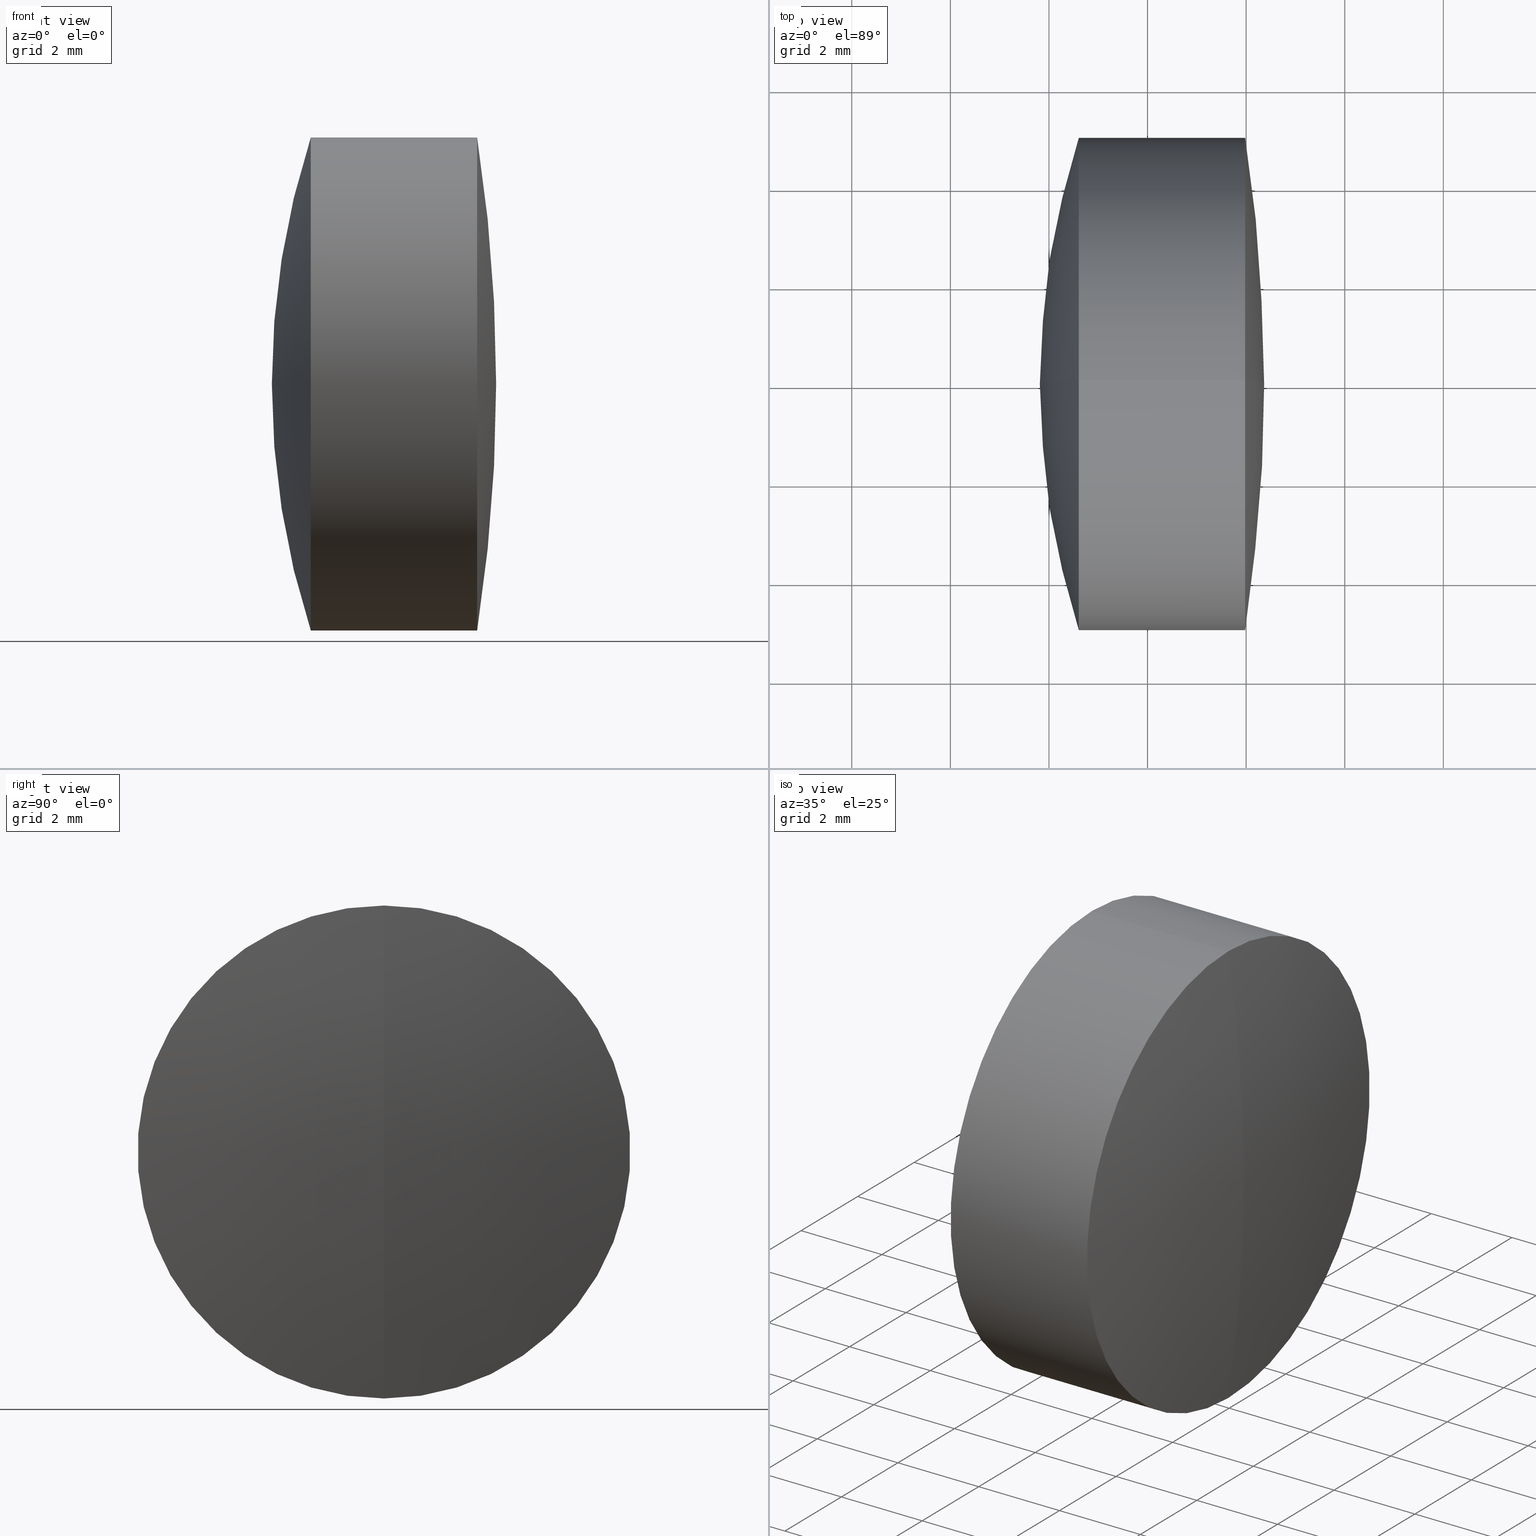
[diagram: canonical four-view strip — front | top / right | iso, engineering-drawing reading convention]
A machine part, canonical four-view strip (front | top / right | iso — engineering-drawing reading convention). The complete STEP part file that produces these views, byte-faithful:
ISO-10303-21;
HEADER;
FILE_DESCRIPTION (( 'STEP AP214' ),
    '1' );
FILE_NAME ('145020.STEP',
    '2019-05-10T06:19:52',
    ( 'user' ),
    ( '΢���й�' ),
    'SwSTEP 2.0',
    'SolidWorks 2016',
    '' );
FILE_SCHEMA (( 'AUTOMOTIVE_DESIGN' ));
ENDSEC;

DATA;
#1 = CYLINDRICAL_SURFACE ( 'NONE', #227, 4.999999999999997300 ) ;
#2 = STYLED_ITEM ( 'NONE', ( #32 ), #28 ) ;
#3 = CARTESIAN_POINT ( 'NONE',  ( 2.605354894896700900, 0.0000000000000000000, 0.0000000000000000000 ) ) ;
#4 = APPLICATION_CONTEXT ( 'automotive_design' ) ;
#5 = CARTESIAN_POINT ( 'NONE',  ( 2.605354894896702700, 0.0000000000000000000, 5.000000000000002700 ) ) ;
#6 = DIRECTION ( 'NONE',  ( -1.000000000000000000, -0.0000000000000000000, -0.0000000000000000000 ) ) ;
#7 = COLOUR_RGB ( '',1.000000000000000000, 1.000000000000000000, 1.000000000000000000 ) ;
#8 = DIRECTION ( 'NONE',  ( -1.000000000000000000, -0.0000000000000000000, -0.0000000000000000000 ) ) ;
#9 = AXIS2_PLACEMENT_3D ( 'NONE', #255, #104, #235 ) ;
#10 = DIRECTION ( 'NONE',  ( 1.000000000000000000, 0.0000000000000000000, 0.0000000000000000000 ) ) ;
#11 = SURFACE_SIDE_STYLE ('',( #289 ) ) ;
#12 = EDGE_LOOP ( 'NONE', ( #179, #261, #31 ) ) ;
#13 = CIRCLE ( 'NONE', #267, 16.22200000000000100 ) ;
#14 = VECTOR ( 'NONE', #209, 1000.000000000000000 ) ;
#15 = DIRECTION ( 'NONE',  ( 0.0000000000000000000, -1.224646799147353500E-016, 1.000000000000000000 ) ) ;
#16 = DIRECTION ( 'NONE',  ( 0.0000000000000000000, 1.000000000000000000, 0.0000000000000000000 ) ) ;
#17 = ADVANCED_FACE ( 'NONE', ( #211 ), #231, .T. ) ;
#18 = FILL_AREA_STYLE ('',( #79 ) ) ;
#19 = VERTEX_POINT ( 'NONE', #77 ) ;
#20 = VERTEX_POINT ( 'NONE', #62 ) ;
#21 = SPHERICAL_SURFACE ( 'NONE', #198, 16.22200000000000100 ) ;
#22 = CIRCLE ( 'NONE', #72, 16.22200000000000100 ) ;
#23 = AXIS2_PLACEMENT_3D ( 'NONE', #272, #324, #288 ) ;
#24 = ORIENTED_EDGE ( 'NONE', *, *, #287, .T. ) ;
#25 = CARTESIAN_POINT ( 'NONE',  ( 1.815570678769085100, 0.0000000000000000000, 3.326856764881216400E-016 ) ) ;
#26 = CARTESIAN_POINT ( 'NONE',  ( 2.605354894896700900, 0.0000000000000000000, 0.0000000000000000000 ) ) ;
#27 = CARTESIAN_POINT ( 'NONE',  ( -6.639429321230914600, 0.0000000000000000000, 1.084202172485504400E-016 ) ) ;
#28 = ADVANCED_BREP_SHAPE_REPRESENTATION ( '145020', ( #51, #137, #146 ), #293 ) ;
#29 = VERTEX_POINT ( 'NONE', #115 ) ;
#30 = ORIENTED_EDGE ( 'NONE', *, *, #55, .T. ) ;
#31 = ORIENTED_EDGE ( 'NONE', *, *, #214, .T. ) ;
#32 = PRESENTATION_STYLE_ASSIGNMENT (( #70 ) ) ;
#33 =( GEOMETRIC_REPRESENTATION_CONTEXT ( 3 ) GLOBAL_UNCERTAINTY_ASSIGNED_CONTEXT ( ( #85 ) ) GLOBAL_UNIT_ASSIGNED_CONTEXT ( ( #176, #46, #248 ) ) REPRESENTATION_CONTEXT ( 'NONE', 'WORKASPACE' ) );
#34 = PRESENTATION_LAYER_ASSIGNMENT (  '', '', ( #2 ) ) ;
#35 = ORIENTED_EDGE ( 'NONE', *, *, #71, .F. ) ;
#36 = ORIENTED_EDGE ( 'NONE', *, *, #161, .T. ) ;
#37 = ORIENTED_EDGE ( 'NONE', *, *, #274, .F. ) ;
#38 = DIRECTION ( 'NONE',  ( -1.000000000000000000, -0.0000000000000000000, -0.0000000000000000000 ) ) ;
#39 =( GEOMETRIC_REPRESENTATION_CONTEXT ( 3 ) GLOBAL_UNCERTAINTY_ASSIGNED_CONTEXT ( ( #262 ) ) GLOBAL_UNIT_ASSIGNED_CONTEXT ( ( #247, #219, #162 ) ) REPRESENTATION_CONTEXT ( 'NONE', 'WORKASPACE' ) );
#40 = APPLICATION_CONTEXT ( 'automotive_design' ) ;
#41 = DIRECTION ( 'NONE',  ( 0.0000000000000000000, 0.0000000000000000000, 1.000000000000000000 ) ) ;
#42 = EDGE_CURVE ( 'NONE', #20, #29, #309, .T. ) ;
#43 = SURFACE_STYLE_USAGE ( .BOTH. , #11 ) ;
#44 = VERTEX_POINT ( 'NONE', #112 ) ;
#45 = ORIENTED_EDGE ( 'NONE', *, *, #42, .T. ) ;
#46 =( NAMED_UNIT ( * ) PLANE_ANGLE_UNIT ( ) SI_UNIT ( $, .RADIAN. ) );
#47 = FACE_OUTER_BOUND ( 'NONE', #67, .T. ) ;
#48 = AXIS2_PLACEMENT_3D ( 'NONE', #256, #307, #329 ) ;
#49 = AXIS2_PLACEMENT_3D ( 'NONE', #122, #74, #80 ) ;
#50 = DIRECTION ( 'NONE',  ( 0.0000000000000000000, -1.224646799147353200E-016, 1.000000000000000000 ) ) ;
#51 = MANIFOLD_SOLID_BREP ( '��ת1', #236 ) ;
#52 = EDGE_LOOP ( 'NONE', ( #202, #90, #258, #111 ) ) ;
#53 = ORIENTED_EDGE ( 'NONE', *, *, #234, .F. ) ;
#54 = CARTESIAN_POINT ( 'NONE',  ( -6.639429321230914600, 0.0000000000000000000, 1.084202172485504400E-016 ) ) ;
#55 = EDGE_CURVE ( 'NONE', #59, #318, #337, .T. ) ;
#56 = VECTOR ( 'NONE', #60, 1000.000000000000000 ) ;
#57 = AXIS2_PLACEMENT_3D ( 'NONE', #210, #192, #303 ) ;
#58 = FACE_OUTER_BOUND ( 'NONE', #12, .T. ) ;
#59 = VERTEX_POINT ( 'NONE', #5 ) ;
#60 = DIRECTION ( 'NONE',  ( -1.000000000000000000, -0.0000000000000000000, -0.0000000000000000000 ) ) ;
#61 = ORIENTED_EDGE ( 'NONE', *, *, #291, .T. ) ;
#62 = CARTESIAN_POINT ( 'NONE',  ( 5.980462902601981800, 6.123233995736762300E-016, -4.999999999999995600 ) ) ;
#63 = FACE_OUTER_BOUND ( 'NONE', #185, .T. ) ;
#64 = DIRECTION ( 'NONE',  ( 0.0000000000000000000, 0.0000000000000000000, 1.000000000000000000 ) ) ;
#65 = EDGE_CURVE ( 'NONE', #157, #19, #96, .T. ) ;
#66 = PRESENTATION_STYLE_ASSIGNMENT (( #124 ) ) ;
#67 = EDGE_LOOP ( 'NONE', ( #30, #61, #327 ) ) ;
#68 = DIRECTION ( 'NONE',  ( -1.000000000000000000, -0.0000000000000000000, -0.0000000000000000000 ) ) ;
#69 = AXIS2_PLACEMENT_3D ( 'NONE', #3, #6, #301 ) ;
#70 = SURFACE_STYLE_USAGE ( .BOTH. , #207 ) ;
#71 = EDGE_CURVE ( 'NONE', #44, #305, #296, .T. ) ;
#72 = AXIS2_PLACEMENT_3D ( 'NONE', #76, #163, #290 ) ;
#73 = PRODUCT_DEFINITION_CONTEXT ( 'detailed design', #4, 'design' ) ;
#74 = DIRECTION ( 'NONE',  ( 0.0000000000000000000, 1.000000000000000000, 0.0000000000000000000 ) ) ;
#75 = DIRECTION ( 'NONE',  ( 0.0000000000000000000, 0.0000000000000000000, -1.000000000000000000 ) ) ;
#76 = CARTESIAN_POINT ( 'NONE',  ( 18.03757067876908600, 0.0000000000000000000, -6.606253423002966100E-016 ) ) ;
#77 = CARTESIAN_POINT ( 'NONE',  ( 5.980462902601981800, 0.0000000000000000000, 4.999999999999995600 ) ) ;
#78 = PRODUCT_RELATED_PRODUCT_CATEGORY ( 'part', '', ( #310 ) ) ;
#79 = FILL_AREA_STYLE_COLOUR ( '', #246 ) ;
#80 = DIRECTION ( 'NONE',  ( 0.0000000000000000000, 0.0000000000000000000, 1.000000000000000000 ) ) ;
#81 = EDGE_CURVE ( 'NONE', #19, #347, #106, .T. ) ;
#82 = ORIENTED_EDGE ( 'NONE', *, *, #213, .T. ) ;
#83 = DIRECTION ( 'NONE',  ( -0.0000000000000000000, 1.000000000000000000, 1.224646799147353200E-016 ) ) ;
#84 = MECHANICAL_DESIGN_GEOMETRIC_PRESENTATION_REPRESENTATION (  '', ( #2 ), #105 ) ;
#85 = UNCERTAINTY_MEASURE_WITH_UNIT (LENGTH_MEASURE( 1.000000000000000100E-005 ), #176, 'distance_accuracy_value', 'NONE');
#86 = ORIENTED_EDGE ( 'NONE', *, *, #308, .T. ) ;
#87 = ORIENTED_EDGE ( 'NONE', *, *, #141, .T. ) ;
#88 = CARTESIAN_POINT ( 'NONE',  ( -9.702612178336682500, 0.0000000000000000000, 5.000000000000000000 ) ) ;
#89 = CIRCLE ( 'NONE', #252, 32.65100000000000300 ) ;
#90 = ORIENTED_EDGE ( 'NONE', *, *, #234, .T. ) ;
#91 = AXIS2_PLACEMENT_3D ( 'NONE', #208, #270, #64 ) ;
#92 = VERTEX_POINT ( 'NONE', #226 ) ;
#93 = DIRECTION ( 'NONE',  ( 0.0000000000000000000, 0.0000000000000000000, 1.000000000000000000 ) ) ;
#94 = ADVANCED_FACE ( 'NONE', ( #326 ), #268, .T. ) ;
#95 =( NAMED_UNIT ( * ) PLANE_ANGLE_UNIT ( ) SI_UNIT ( $, .RADIAN. ) );
#96 = CIRCLE ( 'NONE', #48, 32.65100000000000300 ) ;
#97 = SURFACE_STYLE_FILL_AREA ( #114 ) ;
#98 = DIRECTION ( 'NONE',  ( 0.0000000000000000000, 0.0000000000000000000, 1.000000000000000000 ) ) ;
#99 = STYLED_ITEM ( 'NONE', ( #317 ), #137 ) ;
#100 = DIRECTION ( 'NONE',  ( -0.0000000000000000000, 1.000000000000000000, 1.224646799147353200E-016 ) ) ;
#101 = EDGE_LOOP ( 'NONE', ( #280, #138, #126 ) ) ;
#102 = APPLICATION_PROTOCOL_DEFINITION ( 'draft international standard', 'automotive_design', 1998, #40 ) ;
#103 = SPHERICAL_SURFACE ( 'NONE', #336, 16.22200000000000100 ) ;
#104 = DIRECTION ( 'NONE',  ( -1.000000000000000000, -0.0000000000000000000, -0.0000000000000000000 ) ) ;
#105 =( GEOMETRIC_REPRESENTATION_CONTEXT ( 3 ) GLOBAL_UNCERTAINTY_ASSIGNED_CONTEXT ( ( #316 ) ) GLOBAL_UNIT_ASSIGNED_CONTEXT ( ( #251, #95, #276 ) ) REPRESENTATION_CONTEXT ( 'NONE', 'WORKASPACE' ) );
#106 = LINE ( 'NONE', #132, #158 ) ;
#107 = CIRCLE ( 'NONE', #278, 11.50500000000000100 ) ;
#108 = FILL_AREA_STYLE_COLOUR ( '', #269 ) ;
#109 = EDGE_CURVE ( 'NONE', #44, #243, #107, .T. ) ;
#110 = ORIENTED_EDGE ( 'NONE', *, *, #116, .F. ) ;
#111 = ORIENTED_EDGE ( 'NONE', *, *, #121, .F. ) ;
#112 = CARTESIAN_POINT ( 'NONE',  ( 4.865570678769086200, 0.0000000000000000000, 8.128982884580655200E-016 ) ) ;
#113 = AXIS2_PLACEMENT_3D ( 'NONE', #180, #38, #98 ) ;
#114 = FILL_AREA_STYLE ('',( #204 ) ) ;
#115 = CARTESIAN_POINT ( 'NONE',  ( 3.722280238489434500, 6.123233995736763300E-016, -4.999999999999997300 ) ) ;
#116 = EDGE_CURVE ( 'NONE', #318, #59, #127, .T. ) ;
#117 = DIRECTION ( 'NONE',  ( -1.000000000000000000, -0.0000000000000000000, -0.0000000000000000000 ) ) ;
#118 = ORIENTED_EDGE ( 'NONE', *, *, #213, .F. ) ;
#119 = CARTESIAN_POINT ( 'NONE',  ( 6.365570678769087100, 0.0000000000000000000, 1.999297131948011600E-015 ) ) ;
#120 = DIRECTION ( 'NONE',  ( 0.0000000000000000000, 1.000000000000000000, 0.0000000000000000000 ) ) ;
#121 = EDGE_CURVE ( 'NONE', #29, #347, #279, .T. ) ;
#122 = CARTESIAN_POINT ( 'NONE',  ( -6.639429321230914600, 0.0000000000000000000, 1.084202172485504400E-016 ) ) ;
#123 = DIRECTION ( 'NONE',  ( 0.0000000000000000000, 0.0000000000000000000, 1.000000000000000000 ) ) ;
#124 = SURFACE_STYLE_USAGE ( .BOTH. , #205 ) ;
#125 = PRODUCT_DEFINITION_SHAPE ( 'NONE', 'NONE',  #183 ) ;
#126 = ORIENTED_EDGE ( 'NONE', *, *, #141, .F. ) ;
#127 = CIRCLE ( 'NONE', #69, 5.000000000000000000 ) ;
#128 = UNCERTAINTY_MEASURE_WITH_UNIT (LENGTH_MEASURE( 1.000000000000000100E-005 ), #346, 'distance_accuracy_value', 'NONE');
#129 = MECHANICAL_DESIGN_GEOMETRIC_PRESENTATION_REPRESENTATION (  '', ( #188 ), #33 ) ;
#130 = CARTESIAN_POINT ( 'NONE',  ( -9.702612178336682500, 0.0000000000000000000, 0.0000000000000000000 ) ) ;
#131 = AXIS2_PLACEMENT_3D ( 'NONE', #54, #339, #149 ) ;
#132 = CARTESIAN_POINT ( 'NONE',  ( -0.5519199926577972300, 0.0000000000000000000, 4.999999999999997300 ) ) ;
#133 = SPHERICAL_SURFACE ( 'NONE', #315, 11.50500000000000100 ) ;
#134 = DIRECTION ( 'NONE',  ( 0.0000000000000000000, 1.000000000000000000, 0.0000000000000000000 ) ) ;
#135 = DIRECTION ( 'NONE',  ( 0.0000000000000000000, -1.224646799147353500E-016, 1.000000000000000000 ) ) ;
#136 = PRESENTATION_LAYER_ASSIGNMENT (  '', '', ( #188 ) ) ;
#137 = MANIFOLD_SOLID_BREP ( '��ת3', #222 ) ;
#138 = ORIENTED_EDGE ( 'NONE', *, *, #71, .T. ) ;
#139 = ORIENTED_EDGE ( 'NONE', *, *, #178, .T. ) ;
#140 = CARTESIAN_POINT ( 'NONE',  ( -26.28542932123091800, 0.0000000000000000000, 0.0000000000000000000 ) ) ;
#141 = EDGE_CURVE ( 'NONE', #243, #305, #181, .T. ) ;
#142 = FACE_OUTER_BOUND ( 'NONE', #169, .T. ) ;
#143 = DIRECTION ( 'NONE',  ( -0.0000000000000000000, 1.000000000000000000, 1.224646799147353200E-016 ) ) ;
#144 = SPHERICAL_SURFACE ( 'NONE', #23, 11.50500000000000100 ) ;
#145 = CIRCLE ( 'NONE', #131, 11.50500000000000100 ) ;
#146 = AXIS2_PLACEMENT_3D ( 'NONE', #230, #253, #10 ) ;
#147 = ORIENTED_EDGE ( 'NONE', *, *, #308, .F. ) ;
#148 = FACE_OUTER_BOUND ( 'NONE', #342, .T. ) ;
#149 = DIRECTION ( 'NONE',  ( 0.0000000000000000000, 0.0000000000000000000, -1.000000000000000000 ) ) ;
#150 = FILL_AREA_STYLE ('',( #108 ) ) ;
#151 = DIRECTION ( 'NONE',  ( -1.000000000000000000, -0.0000000000000000000, -0.0000000000000000000 ) ) ;
#152 = AXIS2_PLACEMENT_3D ( 'NONE', #168, #8, #333 ) ;
#153 = ADVANCED_FACE ( 'NONE', ( #332 ), #144, .T. ) ;
#154 = LINE ( 'NONE', #177, #275 ) ;
#155 = ADVANCED_FACE ( 'NONE', ( #63 ), #133, .T. ) ;
#156 = CARTESIAN_POINT ( 'NONE',  ( 18.03757067876908600, 0.0000000000000000000, -6.606253423002966100E-016 ) ) ;
#157 = VERTEX_POINT ( 'NONE', #119 ) ;
#158 = VECTOR ( 'NONE', #151, 1000.000000000000000 ) ;
#159 = LINE ( 'NONE', #88, #14 ) ;
#160 = SHAPE_DEFINITION_REPRESENTATION ( #125, #28 ) ;
#161 = EDGE_CURVE ( 'NONE', #19, #20, #286, .T. ) ;
#162 =( NAMED_UNIT ( * ) SI_UNIT ( $, .STERADIAN. ) SOLID_ANGLE_UNIT ( ) );
#163 = DIRECTION ( 'NONE',  ( 0.0000000000000000000, -1.000000000000000000, 0.0000000000000000000 ) ) ;
#164 = DIRECTION ( 'NONE',  ( -0.0000000000000000000, 1.000000000000000000, 1.224646799147353200E-016 ) ) ;
#165 = EDGE_LOOP ( 'NONE', ( #36, #45, #196, #174 ) ) ;
#166 = SPHERICAL_SURFACE ( 'NONE', #284, 11.50500000000000100 ) ;
#167 = FACE_OUTER_BOUND ( 'NONE', #254, .T. ) ;
#168 = CARTESIAN_POINT ( 'NONE',  ( 3.722280238489433100, 0.0000000000000000000, 0.0000000000000000000 ) ) ;
#169 = EDGE_LOOP ( 'NONE', ( #338, #249, #24 ) ) ;
#170 = ORIENTED_EDGE ( 'NONE', *, *, #109, .T. ) ;
#171 = AXIS2_PLACEMENT_3D ( 'NONE', #140, #16, #311 ) ;
#172 = FACE_OUTER_BOUND ( 'NONE', #313, .T. ) ;
#173 = CARTESIAN_POINT ( 'NONE',  ( 18.03757067876908600, 0.0000000000000000000, -6.606253423002966100E-016 ) ) ;
#174 = ORIENTED_EDGE ( 'NONE', *, *, #81, .F. ) ;
#175 = DIRECTION ( 'NONE',  ( 0.0000000000000000000, 1.000000000000000000, 0.0000000000000000000 ) ) ;
#176 =( LENGTH_UNIT ( ) NAMED_UNIT ( * ) SI_UNIT ( .MILLI., .METRE. ) );
#177 = CARTESIAN_POINT ( 'NONE',  ( -9.702612178336682500, 6.123233995736766300E-016, -5.000000000000000000 ) ) ;
#178 = EDGE_CURVE ( 'NONE', #305, #243, #340, .T. ) ;
#179 = ORIENTED_EDGE ( 'NONE', *, *, #257, .F. ) ;
#180 = CARTESIAN_POINT ( 'NONE',  ( 5.980462902601981800, 0.0000000000000000000, 0.0000000000000000000 ) ) ;
#181 = CIRCLE ( 'NONE', #57, 5.000000000000000000 ) ;
#182 = CARTESIAN_POINT ( 'NONE',  ( 2.605354894896702700, 6.123233995736769200E-016, -5.000000000000002700 ) ) ;
#183 = PRODUCT_DEFINITION ( 'δ֪', '', #217, #73 ) ;
#184 = ADVANCED_FACE ( 'NONE', ( #238 ), #260, .T. ) ;
#185 = EDGE_LOOP ( 'NONE', ( #35, #170, #306 ) ) ;
#186 = DIRECTION ( 'NONE',  ( 0.0000000000000000000, 0.0000000000000000000, 1.000000000000000000 ) ) ;
#187 = DIRECTION ( 'NONE',  ( 0.0000000000000000000, 1.000000000000000000, 0.0000000000000000000 ) ) ;
#188 = STYLED_ITEM ( 'NONE', ( #66 ), #51 ) ;
#189 = AXIS2_PLACEMENT_3D ( 'NONE', #277, #225, #186 ) ;
#190 = DIRECTION ( 'NONE',  ( -1.000000000000000000, -0.0000000000000000000, -0.0000000000000000000 ) ) ;
#191 = DIRECTION ( 'NONE',  ( 0.0000000000000000000, -1.000000000000000000, 0.0000000000000000000 ) ) ;
#192 = DIRECTION ( 'NONE',  ( -1.000000000000000000, -0.0000000000000000000, -0.0000000000000000000 ) ) ;
#193 = CARTESIAN_POINT ( 'NONE',  ( -6.639429321230914600, 0.0000000000000000000, 1.084202172485504400E-016 ) ) ;
#194 = ORIENTED_EDGE ( 'NONE', *, *, #161, .F. ) ;
#195 = EDGE_CURVE ( 'NONE', #305, #59, #159, .T. ) ;
#196 = ORIENTED_EDGE ( 'NONE', *, *, #214, .F. ) ;
#197 = DIRECTION ( 'NONE',  ( 0.0000000000000000000, 0.0000000000000000000, 1.000000000000000000 ) ) ;
#198 = AXIS2_PLACEMENT_3D ( 'NONE', #300, #120, #216 ) ;
#199 = DIRECTION ( 'NONE',  ( 0.0000000000000000000, 0.0000000000000000000, 1.000000000000000000 ) ) ;
#200 = CARTESIAN_POINT ( 'NONE',  ( -26.28542932123091800, 0.0000000000000000000, 0.0000000000000000000 ) ) ;
#201 = ORIENTED_EDGE ( 'NONE', *, *, #55, .F. ) ;
#202 = ORIENTED_EDGE ( 'NONE', *, *, #42, .F. ) ;
#203 = CARTESIAN_POINT ( 'NONE',  ( 3.722280238489433100, 0.0000000000000000000, 0.0000000000000000000 ) ) ;
#204 = FILL_AREA_STYLE_COLOUR ( '', #7 ) ;
#205 = SURFACE_SIDE_STYLE ('',( #97 ) ) ;
#206 = AXIS2_PLACEMENT_3D ( 'NONE', #193, #83, #15 ) ;
#207 = SURFACE_SIDE_STYLE ('',( #294 ) ) ;
#208 = CARTESIAN_POINT ( 'NONE',  ( 3.722280238489432700, 0.0000000000000000000, 0.0000000000000000000 ) ) ;
#209 = DIRECTION ( 'NONE',  ( -1.000000000000000000, -0.0000000000000000000, -0.0000000000000000000 ) ) ;
#210 = CARTESIAN_POINT ( 'NONE',  ( 3.722280238489432700, 0.0000000000000000000, 0.0000000000000000000 ) ) ;
#211 = FACE_OUTER_BOUND ( 'NONE', #331, .T. ) ;
#212 = FACE_OUTER_BOUND ( 'NONE', #165, .T. ) ;
#213 = EDGE_CURVE ( 'NONE', #243, #318, #154, .T. ) ;
#214 = EDGE_CURVE ( 'NONE', #347, #29, #232, .T. ) ;
#215 = DIRECTION ( 'NONE',  ( -1.000000000000000000, -0.0000000000000000000, -0.0000000000000000000 ) ) ;
#216 = DIRECTION ( 'NONE',  ( 0.0000000000000000000, 0.0000000000000000000, 1.000000000000000000 ) ) ;
#217 = PRODUCT_DEFINITION_FORMATION_WITH_SPECIFIED_SOURCE ( '�κ�', '', #310, .NOT_KNOWN. ) ;
#218 = DIRECTION ( 'NONE',  ( -1.000000000000000000, -0.0000000000000000000, -0.0000000000000000000 ) ) ;
#219 =( NAMED_UNIT ( * ) PLANE_ANGLE_UNIT ( ) SI_UNIT ( $, .RADIAN. ) );
#220 = AXIS2_PLACEMENT_3D ( 'NONE', #203, #68, #93 ) ;
#221 = ORIENTED_EDGE ( 'NONE', *, *, #195, .F. ) ;
#222 = CLOSED_SHELL ( 'NONE', ( #184, #242, #319, #292, #94, #17 ) ) ;
#223 = CARTESIAN_POINT ( 'NONE',  ( 3.722280238489434500, 0.0000000000000000000, 4.999999999999997300 ) ) ;
#224 = AXIS2_PLACEMENT_3D ( 'NONE', #26, #190, #282 ) ;
#225 = DIRECTION ( 'NONE',  ( -1.000000000000000000, -0.0000000000000000000, -0.0000000000000000000 ) ) ;
#226 = CARTESIAN_POINT ( 'NONE',  ( 4.865570678769086200, 0.0000000000000000000, 8.128982884580655200E-016 ) ) ;
#227 = AXIS2_PLACEMENT_3D ( 'NONE', #265, #241, #41 ) ;
#228 = CARTESIAN_POINT ( 'NONE',  ( -0.5519199926577972300, 0.0000000000000000000, 0.0000000000000000000 ) ) ;
#229 = SPHERICAL_SURFACE ( 'NONE', #49, 11.50500000000000100 ) ;
#230 = CARTESIAN_POINT ( 'NONE',  ( 0.0000000000000000000, 0.0000000000000000000, 0.0000000000000000000 ) ) ;
#231 = SPHERICAL_SURFACE ( 'NONE', #345, 32.65100000000000300 ) ;
#232 = CIRCLE ( 'NONE', #152, 4.999999999999999100 ) ;
#233 = CARTESIAN_POINT ( 'NONE',  ( -6.639429321230914600, 0.0000000000000000000, 1.084202172485504400E-016 ) ) ;
#234 = EDGE_CURVE ( 'NONE', #20, #19, #266, .T. ) ;
#235 = DIRECTION ( 'NONE',  ( 0.0000000000000000000, 0.0000000000000000000, 1.000000000000000000 ) ) ;
#236 = CLOSED_SHELL ( 'NONE', ( #155, #237, #295, #343, #239, #153 ) ) ;
#237 = ADVANCED_FACE ( 'NONE', ( #172 ), #334, .T. ) ;
#238 = FACE_OUTER_BOUND ( 'NONE', #264, .T. ) ;
#239 = ADVANCED_FACE ( 'NONE', ( #148 ), #281, .T. ) ;
#240 = DIRECTION ( 'NONE',  ( 0.0000000000000000000, 0.0000000000000000000, 1.000000000000000000 ) ) ;
#241 = DIRECTION ( 'NONE',  ( -1.000000000000000000, -0.0000000000000000000, -0.0000000000000000000 ) ) ;
#242 = ADVANCED_FACE ( 'NONE', ( #212 ), #1, .T. ) ;
#243 = VERTEX_POINT ( 'NONE', #330 ) ;
#244 = AXIS2_PLACEMENT_3D ( 'NONE', #27, #191, #75 ) ;
#245 = CIRCLE ( 'NONE', #206, 11.50500000000000100 ) ;
#246 = COLOUR_RGB ( '',1.000000000000000000, 1.000000000000000000, 1.000000000000000000 ) ;
#247 =( LENGTH_UNIT ( ) NAMED_UNIT ( * ) SI_UNIT ( .MILLI., .METRE. ) );
#248 =( NAMED_UNIT ( * ) SI_UNIT ( $, .STERADIAN. ) SOLID_ANGLE_UNIT ( ) );
#249 = ORIENTED_EDGE ( 'NONE', *, *, #116, .T. ) ;
#250 = ORIENTED_EDGE ( 'NONE', *, *, #121, .T. ) ;
#251 =( LENGTH_UNIT ( ) NAMED_UNIT ( * ) SI_UNIT ( .MILLI., .METRE. ) );
#252 = AXIS2_PLACEMENT_3D ( 'NONE', #320, #143, #302 ) ;
#253 = DIRECTION ( 'NONE',  ( 0.0000000000000000000, 0.0000000000000000000, 1.000000000000000000 ) ) ;
#254 = EDGE_LOOP ( 'NONE', ( #37, #314, #250 ) ) ;
#255 = CARTESIAN_POINT ( 'NONE',  ( 5.980462902601981800, 0.0000000000000000000, 0.0000000000000000000 ) ) ;
#256 = CARTESIAN_POINT ( 'NONE',  ( -26.28542932123091800, 0.0000000000000000000, 0.0000000000000000000 ) ) ;
#257 = EDGE_CURVE ( 'NONE', #92, #29, #245, .T. ) ;
#258 = ORIENTED_EDGE ( 'NONE', *, *, #81, .T. ) ;
#259 = VERTEX_POINT ( 'NONE', #25 ) ;
#260 = SPHERICAL_SURFACE ( 'NONE', #171, 32.65100000000000300 ) ;
#261 = ORIENTED_EDGE ( 'NONE', *, *, #274, .T. ) ;
#262 = UNCERTAINTY_MEASURE_WITH_UNIT (LENGTH_MEASURE( 1.000000000000000100E-005 ), #247, 'distance_accuracy_value', 'NONE');
#263 = AXIS2_PLACEMENT_3D ( 'NONE', #228, #218, #199 ) ;
#264 = EDGE_LOOP ( 'NONE', ( #321, #86, #194 ) ) ;
#265 = CARTESIAN_POINT ( 'NONE',  ( -0.5519199926577972300, 0.0000000000000000000, 0.0000000000000000000 ) ) ;
#266 = CIRCLE ( 'NONE', #113, 4.999999999999995600 ) ;
#267 = AXIS2_PLACEMENT_3D ( 'NONE', #156, #100, #50 ) ;
#268 = CYLINDRICAL_SURFACE ( 'NONE', #263, 4.999999999999997300 ) ;
#269 = COLOUR_RGB ( '',1.000000000000000000, 1.000000000000000000, 1.000000000000000000 ) ;
#270 = DIRECTION ( 'NONE',  ( -1.000000000000000000, -0.0000000000000000000, -0.0000000000000000000 ) ) ;
#271 = DIRECTION ( 'NONE',  ( 0.0000000000000000000, 0.0000000000000000000, 1.000000000000000000 ) ) ;
#272 = CARTESIAN_POINT ( 'NONE',  ( -6.639429321230914600, 0.0000000000000000000, 1.084202172485504400E-016 ) ) ;
#273 = ORIENTED_EDGE ( 'NONE', *, *, #65, .T. ) ;
#274 = EDGE_CURVE ( 'NONE', #92, #347, #145, .T. ) ;
#275 = VECTOR ( 'NONE', #117, 1000.000000000000000 ) ;
#276 =( NAMED_UNIT ( * ) SI_UNIT ( $, .STERADIAN. ) SOLID_ANGLE_UNIT ( ) );
#277 = CARTESIAN_POINT ( 'NONE',  ( -9.702612178336682500, 0.0000000000000000000, 0.0000000000000000000 ) ) ;
#278 = AXIS2_PLACEMENT_3D ( 'NONE', #233, #164, #135 ) ;
#279 = CIRCLE ( 'NONE', #220, 4.999999999999999100 ) ;
#280 = ORIENTED_EDGE ( 'NONE', *, *, #109, .F. ) ;
#281 = CYLINDRICAL_SURFACE ( 'NONE', #299, 5.000000000000000000 ) ;
#282 = DIRECTION ( 'NONE',  ( 0.0000000000000000000, 0.0000000000000000000, 1.000000000000000000 ) ) ;
#283 = CARTESIAN_POINT ( 'NONE',  ( -6.639429321230914600, 0.0000000000000000000, 1.084202172485504400E-016 ) ) ;
#284 = AXIS2_PLACEMENT_3D ( 'NONE', #283, #312, #240 ) ;
#285 = CARTESIAN_POINT ( 'NONE',  ( -6.639429321230914600, 0.0000000000000000000, 1.084202172485504400E-016 ) ) ;
#286 = CIRCLE ( 'NONE', #9, 4.999999999999995600 ) ;
#287 = EDGE_CURVE ( 'NONE', #59, #259, #22, .T. ) ;
#288 = DIRECTION ( 'NONE',  ( 0.0000000000000000000, 0.0000000000000000000, 1.000000000000000000 ) ) ;
#289 = SURFACE_STYLE_FILL_AREA ( #150 ) ;
#290 = DIRECTION ( 'NONE',  ( 0.0000000000000000000, 0.0000000000000000000, -1.000000000000000000 ) ) ;
#291 = EDGE_CURVE ( 'NONE', #318, #259, #13, .T. ) ;
#292 = ADVANCED_FACE ( 'NONE', ( #58 ), #166, .F. ) ;
#293 =( GEOMETRIC_REPRESENTATION_CONTEXT ( 3 ) GLOBAL_UNCERTAINTY_ASSIGNED_CONTEXT ( ( #128 ) ) GLOBAL_UNIT_ASSIGNED_CONTEXT ( ( #346, #298, #325 ) ) REPRESENTATION_CONTEXT ( 'NONE', 'WORKASPACE' ) );
#294 = SURFACE_STYLE_FILL_AREA ( #18 ) ;
#295 = ADVANCED_FACE ( 'NONE', ( #47 ), #21, .T. ) ;
#296 = CIRCLE ( 'NONE', #244, 11.50500000000000100 ) ;
#297 = ORIENTED_EDGE ( 'NONE', *, *, #195, .T. ) ;
#298 =( NAMED_UNIT ( * ) PLANE_ANGLE_UNIT ( ) SI_UNIT ( $, .RADIAN. ) );
#299 = AXIS2_PLACEMENT_3D ( 'NONE', #130, #215, #271 ) ;
#300 = CARTESIAN_POINT ( 'NONE',  ( 18.03757067876908600, 0.0000000000000000000, -6.606253423002966100E-016 ) ) ;
#301 = DIRECTION ( 'NONE',  ( 0.0000000000000000000, 0.0000000000000000000, 1.000000000000000000 ) ) ;
#302 = DIRECTION ( 'NONE',  ( 0.0000000000000000000, -1.224646799147353200E-016, 1.000000000000000000 ) ) ;
#303 = DIRECTION ( 'NONE',  ( 0.0000000000000000000, 0.0000000000000000000, 1.000000000000000000 ) ) ;
#304 = APPLICATION_PROTOCOL_DEFINITION ( 'draft international standard', 'automotive_design', 1998, #4 ) ;
#305 = VERTEX_POINT ( 'NONE', #323 ) ;
#306 = ORIENTED_EDGE ( 'NONE', *, *, #178, .F. ) ;
#307 = DIRECTION ( 'NONE',  ( 0.0000000000000000000, -1.000000000000000000, 0.0000000000000000000 ) ) ;
#308 = EDGE_CURVE ( 'NONE', #157, #20, #89, .T. ) ;
#309 = LINE ( 'NONE', #328, #56 ) ;
#310 = PRODUCT ( '145020', '145020', '', ( #335 ) ) ;
#311 = DIRECTION ( 'NONE',  ( 0.0000000000000000000, 0.0000000000000000000, 1.000000000000000000 ) ) ;
#312 = DIRECTION ( 'NONE',  ( 0.0000000000000000000, 1.000000000000000000, 0.0000000000000000000 ) ) ;
#313 = EDGE_LOOP ( 'NONE', ( #139, #82, #201, #221 ) ) ;
#314 = ORIENTED_EDGE ( 'NONE', *, *, #257, .T. ) ;
#315 = AXIS2_PLACEMENT_3D ( 'NONE', #285, #187, #197 ) ;
#316 = UNCERTAINTY_MEASURE_WITH_UNIT (LENGTH_MEASURE( 1.000000000000000100E-005 ), #251, 'distance_accuracy_value', 'NONE');
#317 = PRESENTATION_STYLE_ASSIGNMENT (( #43 ) ) ;
#318 = VERTEX_POINT ( 'NONE', #182 ) ;
#319 = ADVANCED_FACE ( 'NONE', ( #167 ), #229, .F. ) ;
#320 = CARTESIAN_POINT ( 'NONE',  ( -26.28542932123091800, 0.0000000000000000000, 0.0000000000000000000 ) ) ;
#321 = ORIENTED_EDGE ( 'NONE', *, *, #65, .F. ) ;
#322 = MECHANICAL_DESIGN_GEOMETRIC_PRESENTATION_REPRESENTATION (  '', ( #99 ), #39 ) ;
#323 = CARTESIAN_POINT ( 'NONE',  ( 3.722280238489432700, 0.0000000000000000000, 5.000000000000000000 ) ) ;
#324 = DIRECTION ( 'NONE',  ( 0.0000000000000000000, 1.000000000000000000, 0.0000000000000000000 ) ) ;
#325 =( NAMED_UNIT ( * ) SI_UNIT ( $, .STERADIAN. ) SOLID_ANGLE_UNIT ( ) );
#326 = FACE_OUTER_BOUND ( 'NONE', #52, .T. ) ;
#327 = ORIENTED_EDGE ( 'NONE', *, *, #287, .F. ) ;
#328 = CARTESIAN_POINT ( 'NONE',  ( -0.5519199926577972300, 6.123233995736763300E-016, -4.999999999999997300 ) ) ;
#329 = DIRECTION ( 'NONE',  ( 0.0000000000000000000, 0.0000000000000000000, -1.000000000000000000 ) ) ;
#330 = CARTESIAN_POINT ( 'NONE',  ( 3.722280238489432700, 6.123233995736766300E-016, -5.000000000000000000 ) ) ;
#331 = EDGE_LOOP ( 'NONE', ( #147, #273, #53 ) ) ;
#332 = FACE_OUTER_BOUND ( 'NONE', #101, .T. ) ;
#333 = DIRECTION ( 'NONE',  ( 0.0000000000000000000, 0.0000000000000000000, 1.000000000000000000 ) ) ;
#334 = CYLINDRICAL_SURFACE ( 'NONE', #189, 5.000000000000000000 ) ;
#335 = PRODUCT_CONTEXT ( 'NONE', #40, 'mechanical' ) ;
#336 = AXIS2_PLACEMENT_3D ( 'NONE', #173, #134, #344 ) ;
#337 = CIRCLE ( 'NONE', #224, 5.000000000000000000 ) ;
#338 = ORIENTED_EDGE ( 'NONE', *, *, #291, .F. ) ;
#339 = DIRECTION ( 'NONE',  ( 0.0000000000000000000, -1.000000000000000000, 0.0000000000000000000 ) ) ;
#340 = CIRCLE ( 'NONE', #91, 5.000000000000000000 ) ;
#341 = PRESENTATION_LAYER_ASSIGNMENT (  '', '', ( #99 ) ) ;
#342 = EDGE_LOOP ( 'NONE', ( #118, #87, #297, #110 ) ) ;
#343 = ADVANCED_FACE ( 'NONE', ( #142 ), #103, .T. ) ;
#344 = DIRECTION ( 'NONE',  ( 0.0000000000000000000, 0.0000000000000000000, 1.000000000000000000 ) ) ;
#345 = AXIS2_PLACEMENT_3D ( 'NONE', #200, #175, #123 ) ;
#346 =( LENGTH_UNIT ( ) NAMED_UNIT ( * ) SI_UNIT ( .MILLI., .METRE. ) );
#347 = VERTEX_POINT ( 'NONE', #223 ) ;
ENDSEC;
END-ISO-10303-21;
